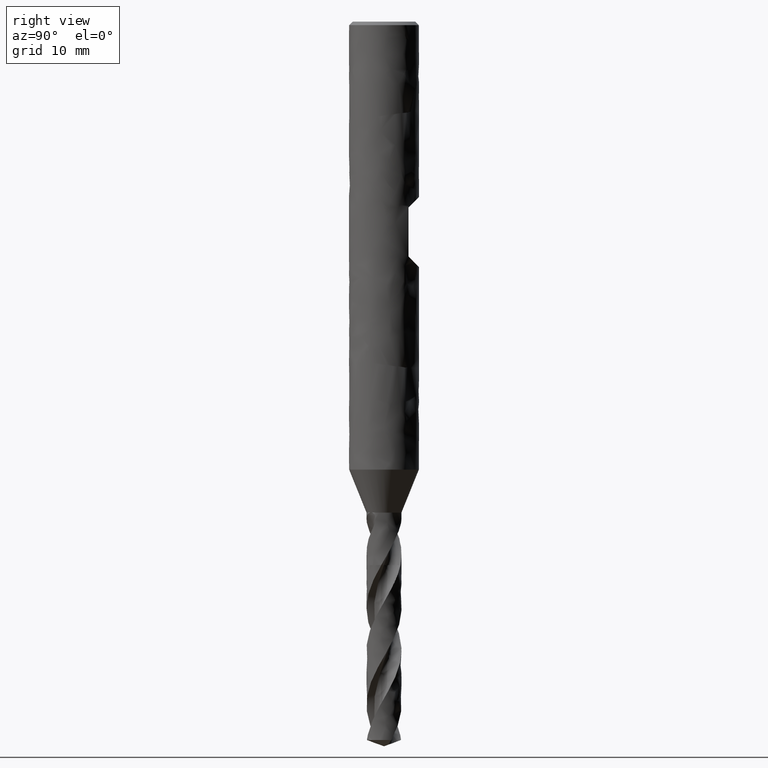
[diagram: clean part render]
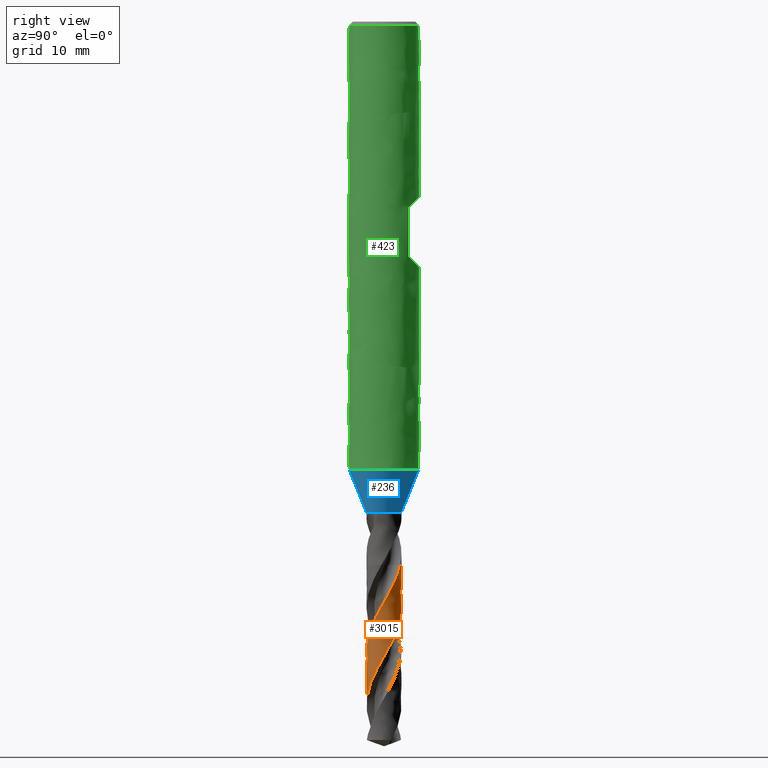
[diagram: same view with three faces highlighted in distinct colors, each labeled with its STEP entity id]
A machine part, right view with three faces highlighted in distinct colors.
Their STEP definitions:

[orange] entity #3015 — the highlighted face is a freeform B-spline surface patch.
#1657 = VERTEX_POINT('', #1658);
#1658 = CARTESIAN_POINT('', (0.52951462340686, 1.40342946513115, -46.5));
#1665 = EDGE_CURVE('', #1666, #1657, #1668, .T.);
#1666 = VERTEX_POINT('', #1667);
#1667 = CARTESIAN_POINT('', (-1.48073476619094, 0.239634204973892, -46.5));
#1668 = CIRCLE('', #1669, 1.5);
#1669 = AXIS2_PLACEMENT_3D('', #1670, #1671, #1672);
#1670 = CARTESIAN_POINT('', (1.74347074734441E-31, 2.8473038080176E-15, -46.5));
#1671 = DIRECTION('', (3.74939945665464E-33, 6.12323399573677E-17, -1.));
#1672 = DIRECTION('', (-1., 6.12323399573677E-17, 0.));
#2684 = EDGE_CURVE('', #2685, #1666, #2687, .T.);
#2685 = VERTEX_POINT('', #2686);
#2686 = CARTESIAN_POINT('', (-1.36402506337757, -0.624047775797498, -61.4540446486007));
#2687 = B_SPLINE_CURVE_WITH_KNOTS('', 3, (#2688, #2689, #2690, #2691, #2692, #2693, #2694, #2695, #2696, #2697, #2698, #2699, #2700, #2701, #2702, #2703, #2704, #2705, #2706, #2707, #2708, #2709, #2710, #2711, #2712, #2713, #2714, #2715, #2716, #2717, #2718, #2719, #2720, #2721, #2722, #2723, #2724, #2725, #2726, #2727, #2728, #2729, #2730, #2731, #2732, #2733, #2734, #2735, #2736, #2737, #2738, #2739, #2740, #2741, #2742, #2743, #2744, #2745, #2746, #2747, #2748, #2749, #2750, #2751, #2752, #2753, #2754, #2755, #2756, #2757, #2758, #2759, #2760, #2761, #2762, #2763, #2764, #2765, #2766, #2767, #2768, #2769, #2770, #2771, #2772, #2773, #2774, #2775, #2776, #2777, #2778, #2779, #2780, #2781, #2782, #2783, #2784, #2785, #2786, #2787, #2788, #2789, #2790, #2791, #2792, #2793, #2794, #2795, #2796, #2797, #2798, #2799, #2800, #2801, #2802, #2803, #2804, #2805, #2806, #2807, #2808, #2809, #2810, #2811, #2812, #2813, #2814, #2815, #2816, #2817, #2818, #2819, #2820, #2821, #2822, #2823, #2824, #2825, #2826, #2827, #2828, #2829, #2830, #2831, #2832, #2833, #2834, #2835, #2836, #2837, #2838, #2839, #2840, #2841, #2842, #2843, #2844, #2845, #2846, #2847, #2848, #2849, #2850, #2851, #2852, #2853, #2854, #2855, #2856, #2857, #2858, #2859, #2860, #2861, #2862, #2863, #2864, #2865, #2866, #2867, #2868, #2869, #2870, #2871), .UNSPECIFIED., .F., .U., (4, 3, 3, 3, 3, 3, 3, 3, 3, 3, 3, 3, 3, 3, 3, 3, 3, 3, 3, 3, 3, 3, 3, 3, 3, 3, 3, 3, 3, 3, 3, 3, 3, 3, 3, 3, 3, 3, 3, 3, 3, 3, 3, 3, 3, 3, 3, 3, 3, 3, 3, 3, 3, 3, 3, 3, 3, 3, 3, 3, 3, 4), (0., 0.443892613985307, 0.887488530879161, 1.33079520423712, 1.626246755949, 1.9216132941668, 2.21689440505491, 2.51208925631212, 2.80719658771954, 3.10221472204134, 3.39714151043321, 3.45549942805269, 3.48144835894085, 3.92628544991438, 4.22239166911708, 4.51840185150688, 4.81431895983343, 5.11014538677702, 5.40588300687055, 5.70153321658985, 5.99709698511399, 6.29257487289702, 6.58796702795867, 6.88327318896157, 7.17849268043908, 7.47362440001163, 7.76866679709688, 8.06361784225351, 8.19484767068423, 8.233761967263, 8.53002512912276, 8.82618560384423, 9.12224740254867, 9.41821385215034, 9.71408767257394, 10.0098710370353, 10.3055656183867, 10.6011726237265, 10.8966928188551, 11.1921265436694, 11.4874737192656, 11.7827338525189, 12.077906038762, 12.3729889351524, 12.6679807338229, 12.9628791255949, 13.0018113467133, 13.298071114809, 13.5942276383277, 13.8902849157661, 14.1862462593119, 14.4821143716737, 14.7778914065693, 15.073579013197, 15.3691783748985, 15.6646902215541, 15.9601148708176, 16.2554522023656, 16.5507016423787, 16.8458625741291, 17.14093206075, 17.2191628499047), .UNSPECIFIED.);
#2688 = CARTESIAN_POINT('', (-1.36402506337757, -0.624047775797498, -61.4540446486007));
#2689 = CARTESIAN_POINT('', (-1.33361656175587, -0.690513774011746, -61.3253939588564));
#2690 = CARTESIAN_POINT('', (-1.29831440715912, -0.754800844518805, -61.1966636268079));
#2691 = CARTESIAN_POINT('', (-1.25853747785153, -0.816139336659571, -61.0680215219669));
#2692 = CARTESIAN_POINT('', (-1.21878713537791, -0.877436830253303, -60.9394654012966));
#2693 = CARTESIAN_POINT('', (-1.17451709888051, -0.935868176912453, -60.8108296889209));
#2694 = CARTESIAN_POINT('', (-1.12625317830449, -0.990733959425555, -60.6822820771606));
#2695 = CARTESIAN_POINT('', (-1.07802072787169, -1.0455639670987, -60.5538182839485));
#2696 = CARTESIAN_POINT('', (-1.0257378630701, -1.0969032243196, -60.425274976682));
#2697 = CARTESIAN_POINT('', (-0.970025986863268, -1.14413704808905, -60.2968195450169));
#2698 = CARTESIAN_POINT('', (-0.932895572945951, -1.17561707617043, -60.2112075772931));
#2699 = CARTESIAN_POINT('', (-0.894217485994379, -1.20529888006559, -60.1255728673317));
#2700 = CARTESIAN_POINT('', (-0.854197027885905, -1.23302369707596, -60.0399646534866));
#2701 = CARTESIAN_POINT('', (-0.814188085299886, -1.26074053652267, -59.9543810726257));
#2702 = CARTESIAN_POINT('', (-0.772814012301867, -1.28651781376226, -59.8687747770296));
#2703 = CARTESIAN_POINT('', (-0.730294519269982, -1.31021750679962, -59.7831949590174));
#2704 = CARTESIAN_POINT('', (-0.687787323930217, -1.33391034529786, -59.6976398928115));
#2705 = CARTESIAN_POINT('', (-0.644110398519459, -1.35554072347134, -59.6120620952617));
#2706 = CARTESIAN_POINT('', (-0.599495624388476, -1.37499272592224, -59.5265108057615));
#2707 = CARTESIAN_POINT('', (-0.554893883444541, -1.394439045915, -59.4409845081161));
#2708 = CARTESIAN_POINT('', (-0.509328840051515, -1.41171960958913, -59.355435404912));
#2709 = CARTESIAN_POINT('', (-0.463042134407962, -1.42674173618176, -59.2699129000451));
#2710 = CARTESIAN_POINT('', (-0.416769151922206, -1.44175940898985, -59.1844157510295));
#2711 = CARTESIAN_POINT('', (-0.369748320757877, -1.45452863343372, -59.0988956897154));
#2712 = CARTESIAN_POINT('', (-0.32222865377351, -1.46498078304372, -59.0134023232317));
#2713 = CARTESIAN_POINT('', (-0.274723349752558, -1.4754297734598, -58.9279347973773));
#2714 = CARTESIAN_POINT('', (-0.226692513376663, -1.48356903554981, -58.842444285489));
#2715 = CARTESIAN_POINT('', (-0.178390267763973, -1.48935452876986, -58.7569805246105));
#2716 = CARTESIAN_POINT('', (-0.130102977887999, -1.49513823063814, -58.6715432257213));
#2717 = CARTESIAN_POINT('', (-0.0815171878159708, -1.49857288856306, -58.5860829127309));
#2718 = CARTESIAN_POINT('', (-0.0328898616455656, -1.49963937565049, -58.500649363307));
#2719 = CARTESIAN_POINT('', (-0.023267848297163, -1.49985040417703, -58.4837444084659));
#2720 = CARTESIAN_POINT('', (-0.0136435651749079, -1.49996882820286, -58.4668393357587));
#2721 = CARTESIAN_POINT('', (-0.0040190243563935, -1.49999461580474, -58.4499345222096));
#2722 = CARTESIAN_POINT('', (0.000260541377229877, -1.50000608229851, -58.4424177728745));
#2723 = CARTESIAN_POINT('', (0.00454018917414083, -1.49999923396252, -58.4349010200096));
#2724 = CARTESIAN_POINT('', (0.00881974195133834, -1.49997407049343, -58.4273842966714));
#2725 = CARTESIAN_POINT('', (0.0821832194788288, -1.49954269840962, -58.2985266817735));
#2726 = CARTESIAN_POINT('', (0.155570168872702, -1.49371433056337, -58.1695884104485));
#2727 = CARTESIAN_POINT('', (0.228096496080481, -1.48255589725214, -58.0407393046628));
#2728 = CARTESIAN_POINT('', (0.276373712566979, -1.47512827584408, -57.9549707787552));
#2729 = CARTESIAN_POINT('', (0.324305141501103, -1.46533705297267, -57.8691791585662));
#2730 = CARTESIAN_POINT('', (0.371633915506573, -1.45323371583695, -57.7834143895223));
#2731 = CARTESIAN_POINT('', (0.418947339261628, -1.44113430420446, -57.6976774367637));
#2732 = CARTESIAN_POINT('', (0.46568635321182, -1.42671714819544, -57.6119174502956));
#2733 = CARTESIAN_POINT('', (0.511600312885777, -1.41005855192441, -57.5261842573367));
#2734 = CARTESIAN_POINT('', (0.557499835898291, -1.39340519359226, -57.4404780213444));
#2735 = CARTESIAN_POINT('', (0.602601960556044, -1.37450195462753, -57.3547487882909));
#2736 = CARTESIAN_POINT('', (0.646664728676761, -1.35344919693552, -57.269046318644));
#2737 = CARTESIAN_POINT('', (0.690713994121771, -1.3324028906893, -57.1833701118195));
#2738 = CARTESIAN_POINT('', (0.733750597959465, -1.30919593336017, -57.0976709091718));
#2739 = CARTESIAN_POINT('', (0.775543676028076, -1.28395171504728, -57.0119984790907));
#2740 = CARTESIAN_POINT('', (0.817324207849024, -1.25871507502797, -56.9263517678025));
#2741 = CARTESIAN_POINT('', (0.857886563468375, -1.23142754332112, -56.840682014234));
#2742 = CARTESIAN_POINT('', (0.89701329239974, -1.20223423394036, -56.7550390941314));
#2743 = CARTESIAN_POINT('', (0.936128456748902, -1.17304955314767, -56.6694214872767));
#2744 = CARTESIAN_POINT('', (0.973831644617172, -1.14194322039065, -56.5837807525925));
#2745 = CARTESIAN_POINT('', (1.00992093359082, -1.10908056871222, -56.4981669358069));
#2746 = CARTESIAN_POINT('', (1.04599967090184, -1.07622752530328, -56.4125781504956));
#2747 = CARTESIAN_POINT('', (1.08048625275596, -1.04160025998079, -56.3269661629424));
#2748 = CARTESIAN_POINT('', (1.11319610502741, -1.00538272899021, -56.2413811529724));
#2749 = CARTESIAN_POINT('', (1.14589645293245, -0.969175721577726, -56.1558210110845));
#2750 = CARTESIAN_POINT('', (1.17683981791799, -0.931358656404265, -56.0702376305212));
#2751 = CARTESIAN_POINT('', (1.20586059182673, -0.892132407818076, -55.9846812507337));
#2752 = CARTESIAN_POINT('', (1.23487294537637, -0.852917540702987, -55.8991496950755));
#2753 = CARTESIAN_POINT('', (1.26198037684883, -0.812271932593015, -55.8135948974369));
#2754 = CARTESIAN_POINT('', (1.28703771624543, -0.770411524421682, -55.7280670923397));
#2755 = CARTESIAN_POINT('', (1.31208776099226, -0.728563302580752, -55.6425641859507));
#2756 = CARTESIAN_POINT('', (1.3351032089587, -0.685477089005083, -55.5570380618177));
#2757 = CARTESIAN_POINT('', (1.35596064033694, -0.641381900163269, -55.4715388963754));
#2758 = CARTESIAN_POINT('', (1.37681195025915, -0.597299652836377, -55.3860648241179));
#2759 = CARTESIAN_POINT('', (1.39551845664923, -0.55218375295335, -55.3005675795395));
#2760 = CARTESIAN_POINT('', (1.41197962607251, -0.506274170342656, -55.215097240773));
#2761 = CARTESIAN_POINT('', (1.42843590141448, -0.46037823714075, -55.1296523132501));
#2762 = CARTESIAN_POINT('', (1.44265765490148, -0.413662632558479, -55.0441842728621));
#2763 = CARTESIAN_POINT('', (1.45456818322172, -0.366376036824365, -54.9587430737776));
#2764 = CARTESIAN_POINT('', (1.46647510678536, -0.319103752518224, -54.8733277337246));
#2765 = CARTESIAN_POINT('', (1.47607910739007, -0.271233384611762, -54.7878893463039));
#2766 = CARTESIAN_POINT('', (1.48332804591319, -0.223019972665015, -54.7024777322963));
#2767 = CARTESIAN_POINT('', (1.49057473999782, -0.174821488702212, -54.6170925636936));
#2768 = CARTESIAN_POINT('', (1.4954720574103, -0.126252011123228, -54.5316844103939));
#2769 = CARTESIAN_POINT('', (1.49799292999016, -0.0775704950343171, -54.4463029683734));
#2770 = CARTESIAN_POINT('', (1.49911451840825, -0.0559110803314376, -54.4083149965675));
#2771 = CARTESIAN_POINT('', (1.49976633810661, -0.0342253987331024, -54.3703252192899));
#2772 = CARTESIAN_POINT('', (1.49994761222921, -0.0125363698049567, -54.3323380191875));
#2773 = CARTESIAN_POINT('', (1.50000136643322, -0.00610480379356891, -54.3210734676091));
#2774 = CARTESIAN_POINT('', (1.50001375404687, 0.000327198421333489, -54.3098088917201));
#2775 = CARTESIAN_POINT('', (1.49998477172859, 0.00675903708676955, -54.2985444048458));
#2776 = CARTESIAN_POINT('', (1.49976412291805, 0.0557260499103736, -54.212785370467));
#2777 = CARTESIAN_POINT('', (1.49714275760502, 0.104699705363857, -54.1270028213448));
#2778 = CARTESIAN_POINT('', (1.49213378190737, 0.153417003265315, -54.0412475646197));
#2779 = CARTESIAN_POINT('', (1.48712654236002, 0.202117415368772, -53.9555220313399));
#2780 = CARTESIAN_POINT('', (1.47973045677299, 0.250589752174051, -53.8697729929037));
#2781 = CARTESIAN_POINT('', (1.46998426484277, 0.298573711359035, -53.7840512275998));
#2782 = CARTESIAN_POINT('', (1.46024132019057, 0.346541683042721, -53.6983580234412));
#2783 = CARTESIAN_POINT('', (1.44814420202798, 0.394049318992786, -53.6126413440734));
#2784 = CARTESIAN_POINT('', (1.43375689665526, 0.440841424203184, -53.5269518998519));
#2785 = CARTESIAN_POINT('', (1.41937422483089, 0.487618459636707, -53.4412900526107));
#2786 = CARTESIAN_POINT('', (1.4026944959351, 0.533707547686657, -53.3556047755028));
#2787 = CARTESIAN_POINT('', (1.38380633163535, 0.578860982037931, -53.2699466820078));
#2788 = CARTESIAN_POINT('', (1.36492407880001, 0.624000284633675, -53.1843153970878));
#2789 = CARTESIAN_POINT('', (1.34382376269412, 0.668230823208437, -53.0986607373125));
#2790 = CARTESIAN_POINT('', (1.32061780156778, 0.711314713880064, -53.0130332020168));
#2791 = CARTESIAN_POINT('', (1.29741893507909, 0.75438543273817, -52.9274318451816));
#2792 = CARTESIAN_POINT('', (1.27210210714772, 0.796335447434044, -52.8418071716517));
#2793 = CARTESIAN_POINT('', (1.24480246421371, 0.83693896138696, -52.7562095626214));
#2794 = CARTESIAN_POINT('', (1.21751101561207, 0.877530287682705, -52.6706376467939));
#2795 = CARTESIAN_POINT('', (1.18822185070379, 0.916799844007329, -52.5850424682363));
#2796 = CARTESIAN_POINT('', (1.15709154567483, 0.954536094093802, -52.4994743009436));
#2797 = CARTESIAN_POINT('', (1.12597046052383, 0.992261167816265, -52.4139314764177));
#2798 = CARTESIAN_POINT('', (1.09299089650214, 1.02847617629373, -52.328365430721));
#2799 = CARTESIAN_POINT('', (1.05832933265276, 1.06298590002256, -52.2428263582693));
#2800 = CARTESIAN_POINT('', (1.02367794778297, 1.09748548936232, -52.157312405875));
#2801 = CARTESIAN_POINT('', (0.987324987149553, 1.13030126635173, -52.0717752523483));
#2802 = CARTESIAN_POINT('', (0.94946508143479, 1.16125624180714, -51.9862650586523));
#2803 = CARTESIAN_POINT('', (0.911616253670034, 1.19220215972096, -51.9007798855589));
#2804 = CARTESIAN_POINT('', (0.872238928786811, 1.22130670964703, -51.8152714997826));
#2805 = CARTESIAN_POINT('', (0.831543920661432, 1.24841287561889, -51.7297900953867));
#2806 = CARTESIAN_POINT('', (0.790860834401551, 1.27551110066433, -51.6443337333204));
#2807 = CARTESIAN_POINT('', (0.748836854424493, 1.30062809369215, -51.5588541112237));
#2808 = CARTESIAN_POINT('', (0.70569683380017, 1.32362833860734, -51.4734015250708));
#2809 = CARTESIAN_POINT('', (0.662569527055588, 1.34662180507543, -51.3879741228164));
#2810 = CARTESIAN_POINT('', (0.618301618844708, 1.36751322328361, -51.3025234022232));
#2811 = CARTESIAN_POINT('', (0.573129809141229, 1.38618982173213, -51.2170997671934));
#2812 = CARTESIAN_POINT('', (0.527971454439487, 1.40486085711674, -51.1317015766868));
#2813 = CARTESIAN_POINT('', (0.481883498421486, 1.42132924417571, -51.0462800330459));
#2814 = CARTESIAN_POINT('', (0.435112271945363, 1.43550594244768, -50.9608856005369));
#2815 = CARTESIAN_POINT('', (0.388355193807455, 1.44967835225562, -50.8755169999209));
#2816 = CARTESIAN_POINT('', (0.340888187186668, 1.46156866604139, -50.7901250352325));
#2817 = CARTESIAN_POINT('', (0.29296491783779, 1.47111235360064, -50.7047601840957));
#2818 = CARTESIAN_POINT('', (0.245056443316467, 1.48065309484146, -50.6194216867172));
#2819 = CARTESIAN_POINT('', (0.196664274114661, 1.48785417618995, -50.5340598356879));
#2820 = CARTESIAN_POINT('', (0.148047045273682, 1.49267614450892, -50.4487250802212));
#2821 = CARTESIAN_POINT('', (0.0994452107066592, 1.49749658598847, -50.3634173453527));
#2822 = CARTESIAN_POINT('', (0.0505903050672359, 1.49994221000082, -50.27808628529));
#2823 = CARTESIAN_POINT('', (0.00174351310744415, 1.49999898672053, -50.1927822859735));
#2824 = CARTESIAN_POINT('', (-0.00470519654497468, 1.50000648233214, -50.1815205285129));
#2825 = CARTESIAN_POINT('', (-0.0111540463850753, 1.49997239129975, -50.1702587468623));
#2826 = CARTESIAN_POINT('', (-0.0176024326375574, 1.49989671456579, -50.1589970559928));
#2827 = CARTESIAN_POINT('', (-0.0666722611978898, 1.49932084267849, -50.0732997638913));
#2828 = CARTESIAN_POINT('', (-0.115731464396015, 1.49633387137505, -49.9875787915809));
#2829 = CARTESIAN_POINT('', (-0.16451517795269, 1.49095095701478, -49.9018852731474));
#2830 = CARTESIAN_POINT('', (-0.213281890706621, 1.4855699185647, -49.8162216183404));
#2831 = CARTESIAN_POINT('', (-0.261801873399897, 1.47779145095672, -49.7305343186981));
#2832 = CARTESIAN_POINT('', (-0.309813099906683, 1.46765658214933, -49.6448744321346));
#2833 = CARTESIAN_POINT('', (-0.35780823719829, 1.45752510967436, -49.5592432513643));
#2834 = CARTESIAN_POINT('', (-0.405323168844604, 1.44503285547672, -49.4735884698273));
#2835 = CARTESIAN_POINT('', (-0.452101185030932, 1.43024631392416, -49.3879610533718));
#2836 = CARTESIAN_POINT('', (-0.498864043349082, 1.41546456377718, -49.3023613834776));
#2837 = CARTESIAN_POINT('', (-0.544918063252183, 1.39838128329175, -49.216738161077));
#2838 = CARTESIAN_POINT('', (-0.59001429599614, 1.37908778927238, -49.1311422533342));
#2839 = CARTESIAN_POINT('', (-0.63509632291469, 1.35980037292272, -49.0455733092743));
#2840 = CARTESIAN_POINT('', (-0.679247888527507, 1.33829269717046, -48.9599808596672));
#2841 = CARTESIAN_POINT('', (-0.722230195038787, 1.31468001634399, -48.8744156775005));
#2842 = CARTESIAN_POINT('', (-0.765199270250701, 1.29107460423981, -48.7888768349753));
#2843 = CARTESIAN_POINT('', (-0.807025372173763, 1.26535143321787, -48.7033145264177));
#2844 = CARTESIAN_POINT('', (-0.847482165836622, 1.23764856828943, -48.6177794481924));
#2845 = CARTESIAN_POINT('', (-0.887926727376788, 1.20995407932982, -48.5322702315215));
#2846 = CARTESIAN_POINT('', (-0.927026928973609, 1.18026457398305, -48.4467375732532));
#2847 = CARTESIAN_POINT('', (-0.964571106289377, 1.14873956182927, -48.3612321244738));
#2848 = CARTESIAN_POINT('', (-1.00210407893142, 1.11722395799125, -48.2757521939165));
#2849 = CARTESIAN_POINT('', (-1.03810434173282, 1.08385514670195, -48.1902488227846));
#2850 = CARTESIAN_POINT('', (-1.07237698678844, 1.04881247046674, -48.1047726711873));
#2851 = CARTESIAN_POINT('', (-1.10663948509647, 1.01378016895429, -48.0193218256304));
#2852 = CARTESIAN_POINT('', (-1.13919575716943, 0.977054170990316, -47.9338475148789));
#2853 = CARTESIAN_POINT('', (-1.16986954071252, 0.938831858062504, -47.8484004450428));
#2854 = CARTESIAN_POINT('', (-1.20053427326845, 0.900620823484582, -47.7629785882793));
#2855 = CARTESIAN_POINT('', (-1.22933575697563, 0.860891778536438, -47.6775332120946));
#2856 = CARTESIAN_POINT('', (-1.25611811001071, 0.819858093637636, -47.592115152712));
#2857 = CARTESIAN_POINT('', (-1.28289254707164, 0.7788365369334, -47.5067223400711));
#2858 = CARTESIAN_POINT('', (-1.30766480272109, 0.736486957919466, -47.4213060400276));
#2859 = CARTESIAN_POINT('', (-1.33030059621466, 0.693037029105181, -47.3359169565096));
#2860 = CARTESIAN_POINT('', (-1.3529296533616, 0.64960003086394, -47.2505532845357));
#2861 = CARTESIAN_POINT('', (-1.37343674689929, 0.605038020421444, -47.1651658910408));
#2862 = CARTESIAN_POINT('', (-1.39171097857528, 0.559589628310824, -47.0798060664882));
#2863 = CARTESIAN_POINT('', (-1.40997973210203, 0.514154860470659, -46.994471830637));
#2864 = CARTESIAN_POINT('', (-1.42602777862747, 0.46780708507091, -46.9091146334173));
#2865 = CARTESIAN_POINT('', (-1.43976722111521, 0.420797277798038, -46.8237840818387));
#2866 = CARTESIAN_POINT('', (-1.45350240692476, 0.373802034843998, -46.7384799669002));
#2867 = CARTESIAN_POINT('', (-1.46493815591419, 0.326119610369959, -46.6531505432807));
#2868 = CARTESIAN_POINT('', (-1.47401345662864, 0.278000592945045, -46.5678499026385));
#2869 = CARTESIAN_POINT('', (-1.47641956084782, 0.265242958295637, -46.545234428198));
#2870 = CARTESIAN_POINT('', (-1.47866054644234, 0.252451111870794, -46.5226148352539));
#2871 = CARTESIAN_POINT('', (-1.48073476619094, 0.239634204973892, -46.5));
#3015 = ADVANCED_FACE('', (#3016), #3194, .T.);
#3016 = FACE_OUTER_BOUND('', #3017, .T.);
#3017 = EDGE_LOOP('', (#3018, #3019, #3037, #3178, #3186, #3193));
#3018 = ORIENTED_EDGE('', *, *, #1665, .T.);
#3019 = ORIENTED_EDGE('', *, *, #3020, .T.);
#3020 = EDGE_CURVE('', #1657, #3021, #3023, .T.);
#3021 = VERTEX_POINT('', #3022);
#3022 = CARTESIAN_POINT('', (0.884643870118815, 1.21136502469785, -47.2029310706701));
#3023 = B_SPLINE_CURVE_WITH_KNOTS('', 3, (#3024, #3025, #3026, #3027, #3028, #3029, #3030, #3031, #3032, #3033, #3034, #3035, #3036), .UNSPECIFIED., .F., .U., (4, 3, 3, 3, 4), (1.79825494503924, 1.96639827128209, 2.26225888320252, 2.55802629434119, 2.60941792356074), .UNSPECIFIED.);
#3024 = CARTESIAN_POINT('', (0.52951462340686, 1.40342946513115, -46.5));
#3025 = CARTESIAN_POINT('', (0.555698752443162, 1.39355018044291, -46.5485607274405));
#3026 = CARTESIAN_POINT('', (0.581611411553291, 1.3829356810196, -46.5971389757904));
#3027 = CARTESIAN_POINT('', (0.607197333737666, 1.37160905432331, -46.645702555174));
#3028 = CARTESIAN_POINT('', (0.652217655169184, 1.35167901737068, -46.731153762989));
#3029 = CARTESIAN_POINT('', (0.696267353597215, 1.32952450465069, -46.8166318398275));
#3030 = CARTESIAN_POINT('', (0.739106592550115, 1.30526680983196, -46.9020853855689));
#3031 = CARTESIAN_POINT('', (0.781932336463798, 1.28101675657155, -46.9875120120892));
#3032 = CARTESIAN_POINT('', (0.823572835239664, 1.25465098165086, -47.0729664885084));
#3033 = CARTESIAN_POINT('', (0.863801437461542, 1.22631442812982, -47.1583978483322));
#3034 = CARTESIAN_POINT('', (0.870791434775474, 1.22139075636251, -47.1732421367914));
#3035 = CARTESIAN_POINT('', (0.877739289894669, 1.21640734839591, -47.1880866356982));
#3036 = CARTESIAN_POINT('', (0.884643870118794, 1.21136502469786, -47.2029310706701));
#3037 = ORIENTED_EDGE('', *, *, #3038, .T.);
#3038 = EDGE_CURVE('', #3021, #3039, #3041, .T.);
#3039 = VERTEX_POINT('', #3040);
#3040 = CARTESIAN_POINT('', (-1.5, 3.63740906835212E-15, -57.9033981207419));
#3041 = B_SPLINE_CURVE_WITH_KNOTS('', 3, (#3042, #3043, #3044, #3045, #3046, #3047, #3048, #3049, #3050, #3051, #3052, #3053, #3054, #3055, #3056, #3057, #3058, #3059, #3060, #3061, #3062, #3063, #3064, #3065, #3066, #3067, #3068, #3069, #3070, #3071, #3072, #3073, #3074, #3075, #3076, #3077, #3078, #3079, #3080, #3081, #3082, #3083, #3084, #3085, #3086, #3087, #3088, #3089, #3090, #3091, #3092, #3093, #3094, #3095, #3096, #3097, #3098, #3099, #3100, #3101, #3102, #3103, #3104, #3105, #3106, #3107, #3108, #3109, #3110, #3111, #3112, #3113, #3114, #3115, #3116, #3117, #3118, #3119, #3120, #3121, #3122, #3123, #3124, #3125, #3126, #3127, #3128, #3129, #3130, #3131, #3132, #3133, #3134, #3135, #3136, #3137, #3138, #3139, #3140, #3141, #3142, #3143, #3144, #3145, #3146, #3147, #3148, #3149, #3150, #3151, #3152, #3153, #3154, #3155, #3156, #3157, #3158, #3159, #3160, #3161, #3162, #3163, #3164, #3165, #3166, #3167, #3168, #3169, #3170, #3171, #3172, #3173, #3174, #3175, #3176, #3177), .UNSPECIFIED., .F., .U., (4, 3, 3, 3, 3, 3, 3, 3, 3, 3, 3, 3, 3, 3, 3, 3, 3, 3, 3, 3, 3, 3, 3, 3, 3, 3, 3, 3, 3, 3, 3, 3, 3, 3, 3, 3, 3, 3, 3, 3, 3, 3, 3, 3, 3, 4), (0., 0.443484352225547, 0.73901077809149, 1.03444919640017, 1.32979974178876, 1.62506221423519, 1.92023596560287, 2.21531990663016, 2.51031247638377, 2.80521161130135, 2.84412697946357, 3.14039731181282, 3.43656269131452, 3.73262746545157, 4.02859526180696, 4.32446907175328, 4.62025131607364, 4.91594389580226, 5.21154823082281, 5.50706529607514, 5.80249566143072, 6.09783947950204, 6.3930964850118, 6.68826598867389, 6.98334686276999, 7.27833751783436, 7.47509329338262, 7.56260914766672, 7.60153869899914, 7.89779569774774, 8.19394955946536, 8.4900045004389, 8.78596403913799, 9.08183107665456, 9.37760796005354, 9.67329654179279, 9.9688982221207, 10.2644139643236, 10.5598443125945, 10.8551894016627, 11.1504489585193, 11.4456222963209, 11.7407083002345, 12.0357054046506, 12.2324645676267, 12.3269811186894), .UNSPECIFIED.);
#3042 = CARTESIAN_POINT('', (0.884643870118815, 1.21136502469785, -47.2029310706701));
#3043 = CARTESIAN_POINT('', (0.944226983839601, 1.16785226410049, -47.3310312054127));
#3044 = CARTESIAN_POINT('', (1.00062037828974, 1.11991006338568, -47.4592254548207));
#3045 = CARTESIAN_POINT('', (1.05313969356211, 1.0681277010938, -47.5873404842877));
#3046 = CARTESIAN_POINT('', (1.08813719787873, 1.03362128305623, -47.6727130043509));
#3047 = CARTESIAN_POINT('', (1.12144286227362, 0.997386717204399, -47.7581146640665));
#3048 = CARTESIAN_POINT('', (1.15287757004589, 0.959621440196645, -47.8434939846068));
#3049 = CARTESIAN_POINT('', (1.18430291658478, 0.921867409661247, -47.9288478792468));
#3050 = CARTESIAN_POINT('', (1.21387714113694, 0.882561074374992, -48.0142307109401));
#3051 = CARTESIAN_POINT('', (1.2414413262795, 0.841916524012569, -48.0995913738958));
#3052 = CARTESIAN_POINT('', (1.26899731294383, 0.801284062651117, -48.1849266478355));
#3053 = CARTESIAN_POINT('', (1.29456106319666, 0.759289688207618, -48.2702907192656));
#3054 = CARTESIAN_POINT('', (1.31799548889297, 0.716161916927859, -48.3556327448593));
#3055 = CARTESIAN_POINT('', (1.34142292649039, 0.673047006263273, -48.4409493216315));
#3056 = CARTESIAN_POINT('', (1.36273651871722, 0.628773229461537, -48.5262945991352));
#3057 = CARTESIAN_POINT('', (1.38182236267125, 0.583581149474214, -48.6116178966167));
#3058 = CARTESIAN_POINT('', (1.40090247167139, 0.538402648896608, -48.6969155559771));
#3059 = CARTESIAN_POINT('', (1.41776774191012, 0.492279020921249, -48.782241877221));
#3060 = CARTESIAN_POINT('', (1.43232854852098, 0.445460356363832, -48.867546236583));
#3061 = CARTESIAN_POINT('', (1.4468849248226, 0.398655936976187, -48.9528246410168));
#3062 = CARTESIAN_POINT('', (1.45914702388283, 0.351128700969948, -49.0381317042626));
#3063 = CARTESIAN_POINT('', (1.4690502858655, 0.303135708220793, -49.1234167913359));
#3064 = CARTESIAN_POINT('', (1.47895048135239, 0.255157576262979, -49.2086754703065));
#3065 = CARTESIAN_POINT('', (1.48649922822027, 0.206685321399166, -49.293962827296));
#3066 = CARTESIAN_POINT('', (1.49165753227057, 0.157980398849199, -49.3792281765029));
#3067 = CARTESIAN_POINT('', (1.49681420249905, 0.109290902913049, -49.4644665190841));
#3068 = CARTESIAN_POINT('', (1.49958500707052, 0.060340111610228, -49.5497335667638));
#3069 = CARTESIAN_POINT('', (1.49995674532783, 0.0113913188740265, -49.6349785713605));
#3070 = CARTESIAN_POINT('', (1.50000580051121, 0.00493195679092559, -49.6462276404322));
#3071 = CARTESIAN_POINT('', (1.50001312971788, -0.00152765040544709, -49.6574768280905));
#3072 = CARTESIAN_POINT('', (1.49997873634456, -0.00798689640446321, -49.6687260182005));
#3073 = CARTESIAN_POINT('', (1.49971689284611, -0.0571624033886551, -49.7543683094069));
#3074 = CARTESIAN_POINT('', (1.49703382587779, -0.106333777037444, -49.8400396253567));
#3075 = CARTESIAN_POINT('', (1.49194581516952, -0.155234289379535, -49.9256886366293));
#3076 = CARTESIAN_POINT('', (1.48685960687329, -0.204117478866599, -50.0113073070049));
#3077 = CARTESIAN_POINT('', (1.47936716132713, -0.252758952531729, -50.0969550223022));
#3078 = CARTESIAN_POINT('', (1.46951074702384, -0.300895603792907, -50.1825804060888));
#3079 = CARTESIAN_POINT('', (1.45965768087744, -0.349015903361117, -50.268176703515));
#3080 = CARTESIAN_POINT('', (1.44743648723881, -0.396659945948139, -50.3538020579203));
#3081 = CARTESIAN_POINT('', (1.43291486970226, -0.443570711596628, -50.4394050658493));
#3082 = CARTESIAN_POINT('', (1.41839800880811, -0.490466111344186, -50.5249800340027));
#3083 = CARTESIAN_POINT('', (1.40157379598769, -0.536656001098834, -50.6105840522962));
#3084 = CARTESIAN_POINT('', (1.3825346014778, -0.581891807569661, -50.6961657315711));
#3085 = CARTESIAN_POINT('', (1.3635014529822, -0.627113249129631, -50.781720233853));
#3086 = CARTESIAN_POINT('', (1.34224371556335, -0.671407401283872, -50.8673037503685));
#3087 = CARTESIAN_POINT('', (1.31887746324506, -0.714536379020899, -50.9528649676991));
#3088 = CARTESIAN_POINT('', (1.29551844220392, -0.757652009406078, -51.0383997059491));
#3089 = CARTESIAN_POINT('', (1.27003869187796, -0.799628146449893, -51.1239633839007));
#3090 = CARTESIAN_POINT('', (1.24257685267292, -0.840239706989305, -51.2095048442171));
#3091 = CARTESIAN_POINT('', (1.21512333835771, -0.880838956380685, -51.295020373159));
#3092 = CARTESIAN_POINT('', (1.18567295824967, -0.920098081269475, -51.3805647197016));
#3093 = CARTESIAN_POINT('', (1.15438562591273, -0.957806779411203, -51.4660869806008));
#3094 = CARTESIAN_POINT('', (1.12310763077834, -0.995504223996746, -51.5515837187529));
#3095 = CARTESIAN_POINT('', (1.08997536648505, -1.03167434734166, -51.6371091058168));
#3096 = CARTESIAN_POINT('', (1.05516855386635, -1.06612350266355, -51.7226125796379));
#3097 = CARTESIAN_POINT('', (1.02037201708637, -1.10056248773607, -51.8080908107023));
#3098 = CARTESIAN_POINT('', (0.983881162432134, -1.13330205768654, -51.8935975252039));
#3099 = CARTESIAN_POINT('', (0.945893734023405, -1.16416710309785, -51.9790824648438));
#3100 = CARTESIAN_POINT('', (0.907917450507842, -1.19502309320725, -52.0645423245939));
#3101 = CARTESIAN_POINT('', (0.868422656373249, -1.22402419819969, -52.1500305698098));
#3102 = CARTESIAN_POINT('', (0.827623024185113, -1.25101563932618, -52.2354971128721));
#3103 = CARTESIAN_POINT('', (0.786835344381629, -1.27799917322239, -52.3209386182333));
#3104 = CARTESIAN_POINT('', (0.744719091842321, -1.30299043798747, -52.4064084691979));
#3105 = CARTESIAN_POINT('', (0.701501617676897, -1.32585650822277, -52.491856637829));
#3106 = CARTESIAN_POINT('', (0.658296846738719, -1.34871585726735, -52.577279690057));
#3107 = CARTESIAN_POINT('', (0.613965699389023, -1.36946492695967, -52.6627310900081));
#3108 = CARTESIAN_POINT('', (0.568746853516037, -1.38799388205266, -52.748160790485));
#3109 = CARTESIAN_POINT('', (0.523541408620808, -1.40651734593704, -52.833565173166));
#3110 = CARTESIAN_POINT('', (0.477422051351102, -1.42283298456462, -52.9189979321104));
#3111 = CARTESIAN_POINT('', (0.430636370655563, -1.43685500878433, -53.0044089528408));
#3112 = CARTESIAN_POINT('', (0.383864738140892, -1.45087282265741, -53.0897943274878));
#3113 = CARTESIAN_POINT('', (0.336399837124727, -1.46260661205266, -53.1752081183598));
#3114 = CARTESIAN_POINT('', (0.288495722215364, -1.47199531869617, -53.2606001254787));
#3115 = CARTESIAN_POINT('', (0.240606253673293, -1.48138115480453, -53.3459660245545));
#3116 = CARTESIAN_POINT('', (0.192250177633053, -1.48842877965192, -53.4313603767932));
#3117 = CARTESIAN_POINT('', (0.14368556943263, -1.49310229292466, -53.5167329071863));
#3118 = CARTESIAN_POINT('', (0.111293468236791, -1.49621947888539, -53.5736755192306));
#3119 = CARTESIAN_POINT('', (0.078798443680941, -1.4982821592487, -53.6306271425253));
#3120 = CARTESIAN_POINT('', (0.0462774377374131, -1.49928596296919, -53.687572754166));
#3121 = CARTESIAN_POINT('', (0.0318122785348671, -1.49973244917722, -53.71290183961));
#3122 = CARTESIAN_POINT('', (0.0173407505810859, -1.49996956970865, -53.7382318440581));
#3123 = CARTESIAN_POINT('', (0.00286971343114782, -1.49999725491243, -53.7635614920512));
#3124 = CARTESIAN_POINT('', (-0.00356741716844792, -1.50000957008172, -53.7748288428626));
#3125 = CARTESIAN_POINT('', (-0.0100045575413065, -1.49998044752595, -53.7860963095644));
#3126 = CARTESIAN_POINT('', (-0.0164411058355941, -1.49990989397327, -53.7973637788712));
#3127 = CARTESIAN_POINT('', (-0.0654237530714448, -1.49937297579535, -53.8831101213298));
#3128 = CARTESIAN_POINT('', (-0.114388235520027, -1.49643368426821, -53.9688852861847));
#3129 = CARTESIAN_POINT('', (-0.163071836702705, -1.49110951176476, -54.054638323562));
#3130 = CARTESIAN_POINT('', (-0.211738489485497, -1.48578719278492, -54.1403615074212));
#3131 = CARTESIAN_POINT('', (-0.26015228897822, -1.47807862034464, -54.2261135039666));
#3132 = CARTESIAN_POINT('', (-0.308054086928045, -1.46802679795954, -54.3118433881569));
#3133 = CARTESIAN_POINT('', (-0.355939884811324, -1.45797833306485, -54.3975446370159));
#3134 = CARTESIAN_POINT('', (-0.403341301491213, -1.44558246590395, -54.4832746534486));
#3135 = CARTESIAN_POINT('', (-0.450005077038429, -1.43090720546086, -54.568982611797));
#3136 = CARTESIAN_POINT('', (-0.496653815409412, -1.41623667404955, -54.65466295117));
#3137 = CARTESIAN_POINT('', (-0.542592002526359, -1.39927984910333, -54.7403719666488));
#3138 = CARTESIAN_POINT('', (-0.587574493389688, -1.38012905726889, -54.8260590282532));
#3139 = CARTESIAN_POINT('', (-0.632542925123124, -1.36098425095158, -54.9117193086477));
#3140 = CARTESIAN_POINT('', (-0.676582127187224, -1.33963582893318, -54.9974081168035));
#3141 = CARTESIAN_POINT('', (-0.719457194710583, -1.31619958402181, -55.0830751355918));
#3142 = CARTESIAN_POINT('', (-0.762319197703633, -1.29277048040606, -55.168716050646));
#3143 = CARTESIAN_POINT('', (-0.804042798625084, -1.26724113664342, -55.2543853018355));
#3144 = CARTESIAN_POINT('', (-0.844405452622421, -1.23974974554606, -55.3400329527429));
#3145 = CARTESIAN_POINT('', (-0.884756056694494, -1.21226656176847, -55.4256550342764));
#3146 = CARTESIAN_POINT('', (-0.923770428646958, -1.18280621535479, -55.5113052886493));
#3147 = CARTESIAN_POINT('', (-0.961240610162624, -1.15152789344166, -55.5969340779736));
#3148 = CARTESIAN_POINT('', (-0.998699779377315, -1.12025876407259, -55.6825377014203));
#3149 = CARTESIAN_POINT('', (-1.0346380059848, -1.08715408282681, -55.7681694108457));
#3150 = CARTESIAN_POINT('', (-1.06886406839363, -1.05239232384934, -55.8537797193473));
#3151 = CARTESIAN_POINT('', (-1.10308018050844, -1.01764067090505, -55.9393651389871));
#3152 = CARTESIAN_POINT('', (-1.13560550872556, -0.981212212980403, -56.0249786176075));
#3153 = CARTESIAN_POINT('', (-1.16626746695798, -0.943302812205824, -56.1105707049508));
#3154 = CARTESIAN_POINT('', (-1.19692056493423, -0.90540436595018, -56.1961380591113));
#3155 = CARTESIAN_POINT('', (-1.22572950616574, -0.86600343146519, -56.2817334885157));
#3156 = CARTESIAN_POINT('', (-1.25254197834418, -0.825311209475338, -56.3673074982813));
#3157 = CARTESIAN_POINT('', (-1.27934671262429, -0.784630730985846, -56.4528568119658));
#3158 = CARTESIAN_POINT('', (-1.3041718173167, -0.742635932615658, -56.5384342441717));
#3159 = CARTESIAN_POINT('', (-1.32688662981455, -0.699551192994047, -56.6239902064817));
#3160 = CARTESIAN_POINT('', (-1.34959486408164, -0.656478930752968, -56.7095213917056));
#3161 = CARTESIAN_POINT('', (-1.37020714507343, -0.612292516886839, -56.7950807498568));
#3162 = CARTESIAN_POINT('', (-1.3886155773089, -0.567227272312489, -56.8806185817091));
#3163 = CARTESIAN_POINT('', (-1.40701863407863, -0.522175187287803, -56.9661314355688));
#3164 = CARTESIAN_POINT('', (-1.42322961721004, -0.476219153630053, -57.0516725123681));
#3165 = CARTESIAN_POINT('', (-1.43716426603621, -0.429603156911844, -57.1371920157041));
#3166 = CARTESIAN_POINT('', (-1.45109479197286, -0.38300095261902, -57.2226862161086));
#3167 = CARTESIAN_POINT('', (-1.46275817612535, -0.335712979875763, -57.3082086699155));
#3168 = CARTESIAN_POINT('', (-1.47209442338842, -0.287989598125954, -57.3937095273501));
#3169 = CARTESIAN_POINT('', (-1.4814278579539, -0.24028059382746, -57.4791846262492));
#3170 = CARTESIAN_POINT('', (-1.48844077050117, -0.19210985051549, -57.5646879746723));
#3171 = CARTESIAN_POINT('', (-1.49309784118745, -0.143731821951282, -57.6501697427204));
#3172 = CARTESIAN_POINT('', (-1.49620404567704, -0.111464317408934, -57.7071849502566));
#3173 = CARTESIAN_POINT('', (-1.49826383856573, -0.0790946260499795, -57.7642090050065));
#3174 = CARTESIAN_POINT('', (-1.49927288919272, -0.0466990763475569, -57.8212272864821));
#3175 = CARTESIAN_POINT('', (-1.49975760351895, -0.0311373328366511, -57.8486169705561));
#3176 = CARTESIAN_POINT('', (-1.5, -0.0155681631116409, -57.8760077958061));
#3177 = CARTESIAN_POINT('', (-1.5, 2.88453907977819E-15, -57.9033981207419));
#3178 = ORIENTED_EDGE('', *, *, #3179, .T.);
#3179 = EDGE_CURVE('', #3039, #3180, #3182, .T.);
#3180 = VERTEX_POINT('', #3181);
#3181 = CARTESIAN_POINT('', (-1.5, 3.85482346361442E-15, -61.4540446486007));
#3182 = LINE('', #3183, #3184);
#3183 = CARTESIAN_POINT('', (-1.5, 3.63740906835212E-15, -57.9033981207419));
#3184 = VECTOR('', #3185, 3.55064652785885);
#3185 = DIRECTION('', (0., 2.174143952623E-16, -3.55064652785885));
#3186 = ORIENTED_EDGE('', *, *, #3187, .F.);
#3187 = EDGE_CURVE('', #2685, #3180, #3188, .T.);
#3188 = CIRCLE('', #3189, 1.5);
#3189 = AXIS2_PLACEMENT_3D('', #3190, #3191, #3192);
#3190 = CARTESIAN_POINT('', (2.30415761614694E-31, 3.76297495367837E-15, -61.4540446486007));
#3191 = DIRECTION('', (3.74939945665464E-33, 6.12323399573677E-17, -1.));
#3192 = DIRECTION('', (-1., 6.12323399573677E-17, 0.));
#3193 = ORIENTED_EDGE('', *, *, #2684, .T.);
#3194 = (
   BOUNDED_SURFACE ()
   B_SPLINE_SURFACE (2, 1, ((#3195, #3196), (#3197, #3198), (#3199, #3200), (#3201, #3202), (#3203, #3204), (#3205, #3206), (#3207, #3208), (#3209, #3210), (#3211, #3212)), .UNSPECIFIED., .F., .F., .U.)
   B_SPLINE_SURFACE_WITH_KNOTS ((3, 2, 2, 2, 3), (2, 2), (0.259253722530101, 2.35619449019235, 4.71238898038469, 7.06858347057704, 9.42477796076938), (0.231314365793011, 1.), .UNSPECIFIED.)
   GEOMETRIC_REPRESENTATION_ITEM ()
   RATIONAL_B_SPLINE_SURFACE (((0.942637482338774, 0.942637482338774), (0.739334026262149, 0.739334026262149), (1., 1.), (0.707106781186548, 0.707106781186548), (1., 1.), (0.707106781186548, 0.707106781186548), (1., 1.), (0.707106781186548, 0.707106781186548), (1., 1.)))
   REPRESENTATION_ITEM ('')
   SURFACE ()
);
#3195 = CARTESIAN_POINT('', (-1.48073476619094, 0.239634204973892, -46.5));
#3196 = CARTESIAN_POINT('', (-1.48073476619094, 0.239634204973893, -61.4540446486007));
#3197 = CARTESIAN_POINT('', (-1.27676389837353, 1.5, -46.5));
#3198 = CARTESIAN_POINT('', (-1.27676389837353, 1.5, -61.4540446486007));
#3199 = CARTESIAN_POINT('', (1.84889274661175E-31, 1.5, -46.5));
#3200 = CARTESIAN_POINT('', (2.34193081237488E-31, 1.5, -61.4540446486007));
#3201 = CARTESIAN_POINT('', (1.5, 1.5, -46.5));
#3202 = CARTESIAN_POINT('', (1.5, 1.5, -61.4540446486007));
#3203 = CARTESIAN_POINT('', (1.5, 2.93915231795365E-15, -46.5));
#3204 = CARTESIAN_POINT('', (1.5, 3.85482346361442E-15, -61.4540446486007));
#3205 = CARTESIAN_POINT('', (1.5, -1.5, -46.5));
#3206 = CARTESIAN_POINT('', (1.5, -1.5, -61.4540446486007));
#3207 = CARTESIAN_POINT('', (1.83697019872103E-16, -1.5, -46.5));
#3208 = CARTESIAN_POINT('', (1.83697019872103E-16, -1.5, -61.4540446486007));
#3209 = CARTESIAN_POINT('', (-1.5, -1.5, -46.5));
#3210 = CARTESIAN_POINT('', (-1.5, -1.5, -61.4540446486007));
#3211 = CARTESIAN_POINT('', (-1.5, 2.93915231795365E-15, -46.5));
#3212 = CARTESIAN_POINT('', (-1.5, 3.85482346361442E-15, -61.4540446486007));

[blue] entity #236 — the highlighted face is a freeform B-spline surface patch.
#75 = VERTEX_POINT('', #76);
#76 = CARTESIAN_POINT('', (0.922702667244723, -1.18263256671693, -42.));
#119 = EDGE_CURVE('', #75, #120, #122, .T.);
#120 = VERTEX_POINT('', #121);
#121 = CARTESIAN_POINT('', (-1.5, 2.66360678814549E-15, -42.));
#122 = CIRCLE('', #123, 1.5);
#123 = AXIS2_PLACEMENT_3D('', #124, #125, #126);
#124 = CARTESIAN_POINT('', (1.57474777179495E-31, 2.57175827820944E-15, -42.));
#125 = DIRECTION('', (3.74939945665464E-33, 6.12323399573677E-17, -1.));
#126 = DIRECTION('', (-1., 6.12323399573677E-17, 0.));
#236 = ADVANCED_FACE('', (#237), #348, .T.);
#237 = FACE_OUTER_BOUND('', #238, .T.);
#238 = EDGE_LOOP('', (#239, #256, #265, #280, #288, #303, #310, #318, #325, #326, #327, #342));
#239 = ORIENTED_EDGE('', *, *, #240, .T.);
#240 = EDGE_CURVE('', #241, #243, #245, .T.);
#241 = VERTEX_POINT('', #242);
#242 = CARTESIAN_POINT('', (1.0224165167091, -1.10871747876766, -41.98));
#243 = VERTEX_POINT('', #244);
#244 = CARTESIAN_POINT('', (1.08767677664472, -1.03293718567382, -42.));
#245 = B_SPLINE_CURVE_WITH_KNOTS('', 3, (#246, #247, #248, #249, #250, #251, #252, #253, #254, #255), .UNSPECIFIED., .F., .U., (4, 3, 3, 4), (0., 0.0587868186304592, 0.0977427722430551, 0.102770510642682), .UNSPECIFIED.);
#246 = CARTESIAN_POINT('', (1.02241651670888, -1.10871747876786, -41.98));
#247 = CARTESIAN_POINT('', (1.03681096392016, -1.09542138559137, -41.9800397299316));
#248 = CARTESIAN_POINT('', (1.05056244406651, -1.08114616373491, -41.9819423828308));
#249 = CARTESIAN_POINT('', (1.06281102370113, -1.06646425702421, -41.9862321025205));
#250 = CARTESIAN_POINT('', (1.07092772590041, -1.05673507469914, -41.9890747486295));
#251 = CARTESIAN_POINT('', (1.07846065843934, -1.04673754311732, -41.9929949014391));
#252 = CARTESIAN_POINT('', (1.08513400130735, -1.03678863374504, -41.9980053083563));
#253 = CARTESIAN_POINT('', (1.08599527716071, -1.03550460629746, -41.9986519621516));
#254 = CARTESIAN_POINT('', (1.08684303724668, -1.03422053139779, -41.9993169289336));
#255 = CARTESIAN_POINT('', (1.08767677664471, -1.03293718567383, -42.));
#256 = ORIENTED_EDGE('', *, *, #257, .F.);
#257 = EDGE_CURVE('', #258, #243, #260, .T.);
#258 = VERTEX_POINT('', #259);
#259 = CARTESIAN_POINT('', (-0.922702667244722, 1.18263256671693, -42.));
#260 = CIRCLE('', #261, 1.5);
#261 = AXIS2_PLACEMENT_3D('', #262, #263, #264);
#262 = CARTESIAN_POINT('', (1.57474777179495E-31, 2.57175827820944E-15, -42.));
#263 = DIRECTION('', (3.74939945665464E-33, 6.12323399573677E-17, -1.));
#264 = DIRECTION('', (-1., 6.12323399573677E-17, 0.));
#265 = ORIENTED_EDGE('', *, *, #266, .F.);
#266 = EDGE_CURVE('', #267, #258, #269, .T.);
#267 = VERTEX_POINT('', #268);
#268 = CARTESIAN_POINT('', (-1.02147658556031, 1.1095835103842, -41.98));
#269 = B_SPLINE_CURVE_WITH_KNOTS('', 3, (#270, #271, #272, #273, #274, #275, #276, #277, #278, #279), .UNSPECIFIED., .F., .U., (4, 3, 3, 4), (0., 0.0586684763369277, 0.117006147028182, 0.124959002958814), .UNSPECIFIED.);
#270 = CARTESIAN_POINT('', (-1.0214765855605, 1.10958351038403, -41.98));
#271 = CARTESIAN_POINT('', (-1.00707794907056, 1.12281684135555, -41.980039557774));
#272 = CARTESIAN_POINT('', (-0.99187548431285, 1.135260084783, -41.9818892925667));
#273 = CARTESIAN_POINT('', (-0.976380948810061, 1.14677546770415, -41.9850131798759));
#274 = CARTESIAN_POINT('', (-0.960973780154708, 1.15822592046315, -41.9881194529632));
#275 = CARTESIAN_POINT('', (-0.945164445077836, 1.16885038214623, -41.9925033269785));
#276 = CARTESIAN_POINT('', (-0.929229245668638, 1.17866285514528, -41.9977879689044));
#277 = CARTESIAN_POINT('', (-0.92705688699155, 1.18000053598101, -41.9985083952667));
#278 = CARTESIAN_POINT('', (-0.924881194194753, 1.18132373611657, -41.9992459912658));
#279 = CARTESIAN_POINT('', (-0.922702667244729, 1.18263256671693, -42.));
#280 = ORIENTED_EDGE('', *, *, #281, .F.);
#281 = EDGE_CURVE('', #282, #267, #284, .T.);
#282 = VERTEX_POINT('', #283);
#283 = CARTESIAN_POINT('', (-1.0224165167091, 1.10871747876766, -41.98));
#284 = LINE('', #285, #286);
#285 = CARTESIAN_POINT('', (-1.0224165167091, 1.10871747876766, -41.98));
#286 = VECTOR('', #287, 0.00127807719849531);
#287 = DIRECTION('', (0.00093993114878721, 0.000866031616543639, -7.105427357601E-15));
#288 = ORIENTED_EDGE('', *, *, #289, .T.);
#289 = EDGE_CURVE('', #282, #290, #292, .T.);
#290 = VERTEX_POINT('', #291);
#291 = CARTESIAN_POINT('', (-1.08767677664471, 1.03293718567383, -42.));
#292 = B_SPLINE_CURVE_WITH_KNOTS('', 3, (#293, #294, #295, #296, #297, #298, #299, #300, #301, #302), .UNSPECIFIED., .F., .U., (4, 3, 3, 4), (0., 0.0587868186304594, 0.0977427722430544, 0.102770510641878), .UNSPECIFIED.);
#293 = CARTESIAN_POINT('', (-1.02241651670947, 1.10871747876732, -41.98));
#294 = CARTESIAN_POINT('', (-1.03681096392073, 1.09542138559081, -41.9800397299316));
#295 = CARTESIAN_POINT('', (-1.05056244406705, 1.08114616373433, -41.9819423828309));
#296 = CARTESIAN_POINT('', (-1.06281102370163, 1.06646425702361, -41.9862321025207));
#297 = CARTESIAN_POINT('', (-1.07092772590088, 1.05673507469853, -41.9890747486297));
#298 = CARTESIAN_POINT('', (-1.07846065843979, 1.04673754311671, -41.9929949014394));
#299 = CARTESIAN_POINT('', (-1.08513400130776, 1.03678863374443, -41.9980053083566));
#300 = CARTESIAN_POINT('', (-1.08599527716098, 1.03550460629705, -41.9986519621519));
#301 = CARTESIAN_POINT('', (-1.08684303724682, 1.03422053139759, -41.9993169289337));
#302 = CARTESIAN_POINT('', (-1.08767677664471, 1.03293718567383, -42.));
#303 = ORIENTED_EDGE('', *, *, #304, .F.);
#304 = EDGE_CURVE('', #120, #290, #305, .T.);
#305 = CIRCLE('', #306, 1.5);
#306 = AXIS2_PLACEMENT_3D('', #307, #308, #309);
#307 = CARTESIAN_POINT('', (1.57474777179495E-31, 2.57175827820944E-15, -42.));
#308 = DIRECTION('', (3.74939945665464E-33, 6.12323399573677E-17, -1.));
#309 = DIRECTION('', (-1., 6.12323399573677E-17, 0.));
#310 = ORIENTED_EDGE('', *, *, #311, .F.);
#311 = EDGE_CURVE('', #312, #120, #314, .T.);
#312 = VERTEX_POINT('', #313);
#313 = CARTESIAN_POINT('', (-3., 2.53073261043801E-15, -38.33));
#314 = LINE('', #315, #316);
#315 = CARTESIAN_POINT('', (-3., 2.53073261043801E-15, -38.33));
#316 = VECTOR('', #317, 3.96470679874313);
#317 = DIRECTION('', (1.5, 1.32874177707488E-16, -3.67));
#318 = ORIENTED_EDGE('', *, *, #319, .T.);
#319 = EDGE_CURVE('', #312, #312, #320, .T.);
#320 = CIRCLE('', #321, 3.);
#321 = AXIS2_PLACEMENT_3D('', #322, #323, #324);
#322 = CARTESIAN_POINT('', (1.43714481173573E-31, 2.3470355905659E-15, -38.33));
#323 = DIRECTION('', (3.74939945665464E-33, 6.12323399573677E-17, -1.));
#324 = DIRECTION('', (-1., 6.12323399573677E-17, 0.));
#325 = ORIENTED_EDGE('', *, *, #311, .T.);
#326 = ORIENTED_EDGE('', *, *, #119, .F.);
#327 = ORIENTED_EDGE('', *, *, #328, .F.);
#328 = EDGE_CURVE('', #329, #75, #331, .T.);
#329 = VERTEX_POINT('', #330);
#330 = CARTESIAN_POINT('', (1.02147658556031, -1.1095835103842, -41.98));
#331 = B_SPLINE_CURVE_WITH_KNOTS('', 3, (#332, #333, #334, #335, #336, #337, #338, #339, #340, #341), .UNSPECIFIED., .F., .U., (4, 3, 3, 4), (0., 0.0586684763369301, 0.117006147028187, 0.124959002959187), .UNSPECIFIED.);
#332 = CARTESIAN_POINT('', (1.02147658556076, -1.10958351038379, -41.98));
#333 = CARTESIAN_POINT('', (1.00707794907083, -1.12281684135532, -41.980039557774));
#334 = CARTESIAN_POINT('', (0.991875484313125, -1.13526008478277, -41.9818892925666));
#335 = CARTESIAN_POINT('', (0.97638094881034, -1.14677546770394, -41.9850131798758));
#336 = CARTESIAN_POINT('', (0.960973780154991, -1.15822592046294, -41.9881194529631));
#337 = CARTESIAN_POINT('', (0.945164445078122, -1.16885038214604, -41.9925033269784));
#338 = CARTESIAN_POINT('', (0.929229245668925, -1.1786628551451, -41.9977879689043));
#339 = CARTESIAN_POINT('', (0.927056886991737, -1.18000053598089, -41.9985083952667));
#340 = CARTESIAN_POINT('', (0.92488119419484, -1.18132373611652, -41.9992459912657));
#341 = CARTESIAN_POINT('', (0.922702667244715, -1.18263256671694, -42.));
#342 = ORIENTED_EDGE('', *, *, #343, .F.);
#343 = EDGE_CURVE('', #241, #329, #344, .T.);
#344 = LINE('', #345, #346);
#345 = CARTESIAN_POINT('', (1.0224165167091, -1.10871747876766, -41.98));
#346 = VECTOR('', #347, 0.0012780771984947);
#347 = DIRECTION('', (-0.000939931148786988, -0.000866031616542973, 0.));
#348 = (
   BOUNDED_SURFACE ()
   B_SPLINE_SURFACE (2, 1, ((#349, #350), (#351, #352), (#353, #354), (#355, #356), (#357, #358), (#359, #360), (#361, #362), (#363, #364), (#365, #366)), .UNSPECIFIED., .T., .F., .U.)
   B_SPLINE_SURFACE_WITH_KNOTS ((3, 2, 2, 2, 3), (2, 2), (0., 0.25, 0.5, 0.75, 1.), (0., 1.), .UNSPECIFIED.)
   GEOMETRIC_REPRESENTATION_ITEM ()
   RATIONAL_B_SPLINE_SURFACE (((1., 1.), (0.707106781186548, 0.707106781186548), (1., 1.), (0.707106781186548, 0.707106781186548), (1., 1.), (0.707106781186548, 0.707106781186548), (1., 1.), (0.707106781186548, 0.707106781186548), (1., 1.)))
   REPRESENTATION_ITEM ('')
   SURFACE ()
);
#349 = CARTESIAN_POINT('', (-3., 2.53073261043801E-15, -38.33));
#350 = CARTESIAN_POINT('', (-1.5, 2.66360678814549E-15, -42.));
#351 = CARTESIAN_POINT('', (-3., 3., -38.33));
#352 = CARTESIAN_POINT('', (-1.5, 1.5, -42.));
#353 = CARTESIAN_POINT('', (1.23259516440783E-31, 3., -38.33));
#354 = CARTESIAN_POINT('', (1.60237371373018E-31, 1.5, -42.));
#355 = CARTESIAN_POINT('', (3., 3., -38.33));
#356 = CARTESIAN_POINT('', (1.5, 1.5, -42.));
#357 = CARTESIAN_POINT('', (3., 2.53073261043801E-15, -38.33));
#358 = CARTESIAN_POINT('', (1.5, 2.66360678814549E-15, -42.));
#359 = CARTESIAN_POINT('', (3., -3., -38.33));
#360 = CARTESIAN_POINT('', (1.5, -1.5, -42.));
#361 = CARTESIAN_POINT('', (3.67394039744206E-16, -3., -38.33));
#362 = CARTESIAN_POINT('', (1.83697019872103E-16, -1.5, -42.));
#363 = CARTESIAN_POINT('', (-3., -3., -38.33));
#364 = CARTESIAN_POINT('', (-1.5, -1.5, -42.));
#365 = CARTESIAN_POINT('', (-3., 2.53073261043801E-15, -38.33));
#366 = CARTESIAN_POINT('', (-1.5, 2.66360678814549E-15, -42.));

[green] entity #423 — the highlighted face is a freeform B-spline surface patch.
#312 = VERTEX_POINT('', #313);
#313 = CARTESIAN_POINT('', (-3., 2.53073261043801E-15, -38.33));
#319 = EDGE_CURVE('', #312, #312, #320, .T.);
#320 = CIRCLE('', #321, 3.);
#321 = AXIS2_PLACEMENT_3D('', #322, #323, #324);
#322 = CARTESIAN_POINT('', (1.43714481173573E-31, 2.3470355905659E-15, -38.33));
#323 = DIRECTION('', (3.74939945665464E-33, 6.12323399573677E-17, -1.));
#324 = DIRECTION('', (-1., 6.12323399573677E-17, 0.));
#372 = VERTEX_POINT('', #373);
#373 = CARTESIAN_POINT('', (-3., 2.02066721859313E-16, -0.299999999999997));
#389 = EDGE_CURVE('', #372, #372, #390, .T.);
#390 = CIRCLE('', #391, 3.);
#391 = AXIS2_PLACEMENT_3D('', #392, #393, #394);
#392 = CARTESIAN_POINT('', (1.12481983699637E-33, 1.836970198721E-17, -0.299999999999997));
#393 = DIRECTION('', (3.74939945665464E-33, 6.12323399573677E-17, -1.));
#394 = DIRECTION('', (-1., 6.12323399573677E-17, 0.));
#423 = ADVANCED_FACE('', (#424, #435), #606, .T.);
#424 = FACE_OUTER_BOUND('', #425, .T.);
#425 = EDGE_LOOP('', (#426, #432, #433, #434));
#426 = ORIENTED_EDGE('', *, *, #427, .T.);
#427 = EDGE_CURVE('', #312, #372, #428, .T.);
#428 = LINE('', #429, #430);
#429 = CARTESIAN_POINT('', (-3., 2.53073261043801E-15, -38.33));
#430 = VECTOR('', #431, 38.03);
#431 = DIRECTION('', (0., -2.32866588857869E-15, 38.03));
#432 = ORIENTED_EDGE('', *, *, #389, .T.);
#433 = ORIENTED_EDGE('', *, *, #427, .F.);
#434 = ORIENTED_EDGE('', *, *, #319, .F.);
#435 = FACE_BOUND('', #436, .T.);
#436 = EDGE_LOOP('', (#437, #447, #525, #533));
#437 = ORIENTED_EDGE('', *, *, #438, .F.);
#438 = EDGE_CURVE('', #439, #441, #443, .T.);
#439 = VERTEX_POINT('', #440);
#440 = CARTESIAN_POINT('', (2.14242852856286, 2.1, -15.9));
#441 = VERTEX_POINT('', #442);
#442 = CARTESIAN_POINT('', (2.14242852856286, 2.1, -20.1));
#443 = LINE('', #444, #445);
#444 = CARTESIAN_POINT('', (2.14242852856286, 2.1, -15.9));
#445 = VECTOR('', #446, 4.2);
#446 = DIRECTION('', (-4.44089209850063E-16, 4.44089209850063E-16, -4.2));
#447 = ORIENTED_EDGE('', *, *, #448, .F.);
#448 = EDGE_CURVE('', #449, #439, #451, .T.);
#449 = VERTEX_POINT('', #450);
#450 = CARTESIAN_POINT('', (-2.14242852856285, 2.1, -15.9));
#451 = B_SPLINE_CURVE_WITH_KNOTS('', 3, (#452, #453, #454, #455, #456, #457, #458, #459, #460, #461, #462, #463, #464, #465, #466, #467, #468, #469, #470, #471, #472, #473, #474, #475, #476, #477, #478, #479, #480, #481, #482, #483, #484, #485, #486, #487, #488, #489, #490, #491, #492, #493, #494, #495, #496, #497, #498, #499, #500, #501, #502, #503, #504, #505, #506, #507, #508, #509, #510, #511, #512, #513, #514, #515, #516, #517, #518, #519, #520, #521, #522, #523, #524), .UNSPECIFIED., .F., .U., (4, 3, 3, 3, 3, 3, 3, 3, 3, 3, 3, 3, 3, 3, 3, 3, 3, 3, 3, 3, 3, 3, 3, 3, 4), (0., 0.226532141220111, 0.522486989651018, 0.81871261700037, 1.01613164123478, 1.21365653787485, 1.41130126070877, 1.60907935009337, 1.80700249001341, 2.00507870652318, 2.20331049885993, 2.40169339368015, 2.59896230886553, 2.79623122405092, 2.99461411887114, 3.19284591120789, 3.39092212771765, 3.5888452676377, 3.7866233570223, 3.98426807985622, 4.18179297649629, 4.3792120007307, 4.67543762808005, 4.97139247651096, 5.19792461773105), .UNSPECIFIED.);
#452 = CARTESIAN_POINT('', (-2.14242852856285, 2.1, -15.9));
#453 = CARTESIAN_POINT('', (-2.09966946167759, 2.14362297369035, -15.8556089394693));
#454 = CARTESIAN_POINT('', (-2.05511554936735, 2.1864112283916, -15.8120672951529));
#455 = CARTESIAN_POINT('', (-2.00876778330359, 2.22819478339795, -15.7695480406737));
#456 = CARTESIAN_POINT('', (-1.94821634893922, 2.28278326528933, -15.71399839793));
#457 = CARTESIAN_POINT('', (-1.88451279376244, 2.33573606973675, -15.6601132326456));
#458 = CARTESIAN_POINT('', (-1.81770907332823, 2.38661553768948, -15.6083379099064));
#459 = CARTESIAN_POINT('', (-1.75084423195187, 2.43754155695696, -15.5565152162052));
#460 = CARTESIAN_POINT('', (-1.6807436866328, 2.48648668451198, -15.5067082925553));
#461 = CARTESIAN_POINT('', (-1.607549105666, 2.53294016369761, -15.4594368887067));
#462 = CARTESIAN_POINT('', (-1.5587687118729, 2.56389899941747, -15.4279329486004));
#463 = CARTESIAN_POINT('', (-1.5085561938224, 2.59378846644904, -15.3975172059771));
#464 = CARTESIAN_POINT('', (-1.45698599487321, 2.6224400490275, -15.3683611437249));
#465 = CARTESIAN_POINT('', (-1.40538813971894, 2.65110699695379, -15.3391894455811));
#466 = CARTESIAN_POINT('', (-1.3523713681821, 2.67856731294512, -15.311245625015));
#467 = CARTESIAN_POINT('', (-1.29804490816719, 2.7046403488045, -15.2847135109673));
#468 = CARTESIAN_POINT('', (-1.24368549163368, 2.73072920156951, -15.2581653015194));
#469 = CARTESIAN_POINT('', (-1.18794354651528, 2.75546251726231, -15.2329964966177));
#470 = CARTESIAN_POINT('', (-1.13097137564117, 2.77865142604833, -15.2093992916021));
#471 = CARTESIAN_POINT('', (-1.07396076113038, 2.80185598222798, -15.1857861636831));
#472 = CARTESIAN_POINT('', (-1.01563414958425, 2.82354738172838, -15.1637128351876));
#473 = CARTESIAN_POINT('', (-0.956194799697463, 2.84353503671602, -15.143373249704));
#474 = CARTESIAN_POINT('', (-0.896711856966013, 2.86353735065839, -15.1230187471597));
#475 = CARTESIAN_POINT('', (-0.836016614422416, 2.88186535336629, -15.1043680361057));
#476 = CARTESIAN_POINT('', (-0.774369168024384, 2.89833614192924, -15.087607239896));
#477 = CARTESIAN_POINT('', (-0.712674042608815, 2.91481966923585, -15.0708334806465));
#478 = CARTESIAN_POINT('', (-0.649913305064555, 2.92947198918526, -15.0559231715418));
#479 = CARTESIAN_POINT('', (-0.586405693294018, 2.94212990244693, -15.0430423854271));
#480 = CARTESIAN_POINT('', (-0.522848200475698, 2.95479775766609, -15.030151482303));
#481 = CARTESIAN_POINT('', (-0.458417641638551, 2.96549204170255, -15.0192688998049));
#482 = CARTESIAN_POINT('', (-0.393487032405306, 2.97408270821927, -15.010526974047));
#483 = CARTESIAN_POINT('', (-0.328506929716984, 2.98267992298454, -15.0017783847429));
#484 = CARTESIAN_POINT('', (-0.262890170542835, 2.98918754384691, -14.9951561816426));
#485 = CARTESIAN_POINT('', (-0.197052250671382, 2.99352140638837, -14.9907460110803));
#486 = CARTESIAN_POINT('', (-0.131584030526326, 2.99783093298788, -14.9863606049525));
#487 = CARTESIAN_POINT('', (-0.0657563050617914, 3., -14.9841533463251));
#488 = CARTESIAN_POINT('', (3.64456218873655E-15, 3., -14.9841533463251));
#489 = CARTESIAN_POINT('', (0.0657563050618009, 3., -14.9841533463251));
#490 = CARTESIAN_POINT('', (0.131584030526338, 2.99783093298788, -14.9863606049525));
#491 = CARTESIAN_POINT('', (0.197052250671397, 2.99352140638837, -14.9907460110803));
#492 = CARTESIAN_POINT('', (0.262890170542849, 2.98918754384691, -14.9951561816426));
#493 = CARTESIAN_POINT('', (0.328506929716997, 2.98267992298453, -15.0017783847429));
#494 = CARTESIAN_POINT('', (0.393487032405319, 2.97408270821927, -15.010526974047));
#495 = CARTESIAN_POINT('', (0.458417641638564, 2.96549204170255, -15.0192688998049));
#496 = CARTESIAN_POINT('', (0.522848200475711, 2.95479775766609, -15.030151482303));
#497 = CARTESIAN_POINT('', (0.586405693294031, 2.94212990244693, -15.0430423854271));
#498 = CARTESIAN_POINT('', (0.649913305064568, 2.92947198918526, -15.0559231715418));
#499 = CARTESIAN_POINT('', (0.712674042608827, 2.91481966923584, -15.0708334806465));
#500 = CARTESIAN_POINT('', (0.774369168024396, 2.89833614192924, -15.087607239896));
#501 = CARTESIAN_POINT('', (0.836016614422428, 2.88186535336629, -15.1043680361057));
#502 = CARTESIAN_POINT('', (0.896711856966027, 2.86353735065839, -15.1230187471597));
#503 = CARTESIAN_POINT('', (0.956194799697476, 2.84353503671602, -15.143373249704));
#504 = CARTESIAN_POINT('', (1.01563414958426, 2.82354738172838, -15.1637128351876));
#505 = CARTESIAN_POINT('', (1.07396076113039, 2.80185598222797, -15.1857861636831));
#506 = CARTESIAN_POINT('', (1.13097137564118, 2.77865142604832, -15.2093992916021));
#507 = CARTESIAN_POINT('', (1.1879435465153, 2.75546251726231, -15.2329964966177));
#508 = CARTESIAN_POINT('', (1.24368549163369, 2.7307292015695, -15.2581653015195));
#509 = CARTESIAN_POINT('', (1.2980449081672, 2.70464034880449, -15.2847135109673));
#510 = CARTESIAN_POINT('', (1.35237136818211, 2.67856731294511, -15.311245625015));
#511 = CARTESIAN_POINT('', (1.40538813971895, 2.65110699695378, -15.3391894455812));
#512 = CARTESIAN_POINT('', (1.45698599487322, 2.6224400490275, -15.3683611437249));
#513 = CARTESIAN_POINT('', (1.50855619382241, 2.59378846644903, -15.3975172059771));
#514 = CARTESIAN_POINT('', (1.55876871187291, 2.56389899941746, -15.4279329486004));
#515 = CARTESIAN_POINT('', (1.60754910566601, 2.53294016369761, -15.4594368887067));
#516 = CARTESIAN_POINT('', (1.68074368663281, 2.48648668451198, -15.5067082925553));
#517 = CARTESIAN_POINT('', (1.75084423195189, 2.43754155695695, -15.5565152162052));
#518 = CARTESIAN_POINT('', (1.81770907332824, 2.38661553768947, -15.6083379099064));
#519 = CARTESIAN_POINT('', (1.88451279376245, 2.33573606973674, -15.6601132326456));
#520 = CARTESIAN_POINT('', (1.94821634893922, 2.28278326528932, -15.71399839793));
#521 = CARTESIAN_POINT('', (2.0087677833036, 2.22819478339795, -15.7695480406738));
#522 = CARTESIAN_POINT('', (2.05511554936736, 2.1864112283916, -15.8120672951529));
#523 = CARTESIAN_POINT('', (2.09966946167759, 2.14362297369034, -15.8556089394693));
#524 = CARTESIAN_POINT('', (2.14242852856286, 2.1, -15.9));
#525 = ORIENTED_EDGE('', *, *, #526, .T.);
#526 = EDGE_CURVE('', #449, #527, #529, .T.);
#527 = VERTEX_POINT('', #528);
#528 = CARTESIAN_POINT('', (-2.14242852856285, 2.1, -20.1));
#529 = LINE('', #530, #531);
#530 = CARTESIAN_POINT('', (-2.14242852856285, 2.1, -15.9));
#531 = VECTOR('', #532, 4.2);
#532 = DIRECTION('', (0., 0., -4.2));
#533 = ORIENTED_EDGE('', *, *, #534, .T.);
#534 = EDGE_CURVE('', #527, #441, #535, .T.);
#535 = B_SPLINE_CURVE_WITH_KNOTS('', 3, (#536, #537, #538, #539, #540, #541, #542, #543, #544, #545, #546, #547, #548, #549, #550, #551, #552, #553, #554, #555, #556, #557, #558, #559, #560, #561, #562, #563, #564, #565, #566, #567, #568, #569, #570, #571, #572, #573, #574, #575, #576, #577, #578, #579, #580, #581, #582, #583, #584, #585, #586, #587, #588, #589, #590, #591, #592, #593, #594, #595, #596, #597, #598, #599, #600, #601, #602, #603, #604, #605), .UNSPECIFIED., .F., .U., (4, 3, 3, 3, 3, 3, 3, 3, 3, 3, 3, 3, 3, 3, 3, 3, 3, 3, 3, 3, 3, 3, 3, 4), (0., 0.295660747419769, 0.591176839852677, 0.886518626925894, 1.18164841836716, 1.47652016794506, 1.67307726230278, 1.86952243409268, 2.06584587187348, 2.26204020012183, 2.39294997035299, 2.59879551853109, 2.79606443371648, 2.9944473285367, 3.19267912087345, 3.39075533738321, 3.58867847730326, 3.78645656668786, 3.98410128952178, 4.18162618616184, 4.37904521039626, 4.67527083774561, 4.97122568617651, 5.19775782739662), .UNSPECIFIED.);
#536 = CARTESIAN_POINT('', (-2.14242852856285, 2.1, -20.1));
#537 = CARTESIAN_POINT('', (-2.08662109388193, 2.15693497150777, -20.157937447925));
#538 = CARTESIAN_POINT('', (-2.02774367313634, 2.21245994000831, -20.2144400663657));
#539 = CARTESIAN_POINT('', (-1.96580397010841, 2.26618947820047, -20.269115641651));
#540 = CARTESIAN_POINT('', (-1.90389457170158, 2.31989272867704, -20.3237644663626));
#541 = CARTESIAN_POINT('', (-1.8388216153995, 2.37189080900499, -20.3766780973248));
#542 = CARTESIAN_POINT('', (-1.77065397516674, 2.42173171516323, -20.4273965719039));
#543 = CARTESIAN_POINT('', (-1.70252654250763, 2.47154322347377, -20.4780851310158));
#544 = CARTESIAN_POINT('', (-1.63117078258686, 2.51929762113425, -20.5266803591222));
#545 = CARTESIAN_POINT('', (-1.55675381487313, 2.56447217958794, -20.572650323779));
#546 = CARTESIAN_POINT('', (-1.48239026348173, 2.60961431185107, -20.6185872913044));
#547 = CARTESIAN_POINT('', (-1.40478985624159, 2.6522855246488, -20.6620098329141));
#548 = CARTESIAN_POINT('', (-1.32426732289553, 2.69189822569709, -20.7023200103564));
#549 = CARTESIAN_POINT('', (-1.24381519309784, 2.73147629203384, -20.7425949432603));
#550 = CARTESIAN_POINT('', (-1.16021288035591, 2.76811040114363, -20.7798740835253));
#551 = CARTESIAN_POINT('', (-1.07398043712975, 2.80117225829876, -20.8135180737918));
#552 = CARTESIAN_POINT('', (-1.01649918128152, 2.82321079737816, -20.8359446540893));
#553 = CARTESIAN_POINT('', (-0.957748596561566, 2.84370285567261, -20.856797524107));
#554 = CARTESIAN_POINT('', (-0.897945836518627, 2.86246279882885, -20.8758877809545));
#555 = CARTESIAN_POINT('', (-0.838177129067322, 2.88121205979111, -20.8949671675225));
#556 = CARTESIAN_POINT('', (-0.777257254947385, 2.89826163823775, -20.9123169445968));
#557 = CARTESIAN_POINT('', (-0.715458762567486, 2.91343761887321, -20.9277601346871));
#558 = CARTESIAN_POINT('', (-0.653698565749472, 2.92860419519017, -20.9431937548733));
#559 = CARTESIAN_POINT('', (-0.590947680355499, 2.94192632660259, -20.9567504542887));
#560 = CARTESIAN_POINT('', (-0.527533495262698, 2.9532538684265, -20.9682774445929));
#561 = CARTESIAN_POINT('', (-0.464161013676518, 2.96457396084119, -20.9797968543232));
#562 = CARTESIAN_POINT('', (-0.40000137973657, 2.97392352783086, -20.989311042813));
#563 = CARTESIAN_POINT('', (-0.33542995576513, 2.98118881400953, -20.9967042517405));
#564 = CARTESIAN_POINT('', (-0.292344967778631, 2.9860365430586, -21.0016373366599));
#565 = CARTESIAN_POINT('', (-0.249027925527352, 2.98996321515988, -21.0056331472199));
#566 = CARTESIAN_POINT('', (-0.205599414331938, 2.99294652154468, -21.0086689818526));
#567 = CARTESIAN_POINT('', (-0.137311419648321, 2.99763754145158, -21.0134425983904));
#568 = CARTESIAN_POINT('', (-0.0686151827260371, 3., -21.0158466536749));
#569 = CARTESIAN_POINT('', (-3.23882056393942E-15, 3., -21.0158466536749));
#570 = CARTESIAN_POINT('', (0.0657563050617916, 3., -21.0158466536749));
#571 = CARTESIAN_POINT('', (0.131584030526326, 2.99783093298788, -21.0136393950475));
#572 = CARTESIAN_POINT('', (0.197052250671383, 2.99352140638837, -21.0092539889197));
#573 = CARTESIAN_POINT('', (0.262890170542835, 2.98918754384691, -21.0048438183574));
#574 = CARTESIAN_POINT('', (0.328506929716984, 2.98267992298454, -20.9982216152571));
#575 = CARTESIAN_POINT('', (0.393487032405305, 2.97408270821927, -20.989473025953));
#576 = CARTESIAN_POINT('', (0.458417641638551, 2.96549204170255, -20.9807311001951));
#577 = CARTESIAN_POINT('', (0.522848200475698, 2.95479775766609, -20.969848517697));
#578 = CARTESIAN_POINT('', (0.586405693294019, 2.94212990244693, -20.9569576145729));
#579 = CARTESIAN_POINT('', (0.649913305064555, 2.92947198918526, -20.9440768284582));
#580 = CARTESIAN_POINT('', (0.712674042608815, 2.91481966923585, -20.9291665193535));
#581 = CARTESIAN_POINT('', (0.774369168024384, 2.89833614192924, -20.912392760104));
#582 = CARTESIAN_POINT('', (0.836016614422415, 2.88186535336629, -20.8956319638943));
#583 = CARTESIAN_POINT('', (0.896711856966014, 2.86353735065839, -20.8769812528403));
#584 = CARTESIAN_POINT('', (0.956194799697463, 2.84353503671602, -20.856626750296));
#585 = CARTESIAN_POINT('', (1.01563414958425, 2.82354738172838, -20.8362871648124));
#586 = CARTESIAN_POINT('', (1.07396076113038, 2.80185598222798, -20.8142138363169));
#587 = CARTESIAN_POINT('', (1.13097137564117, 2.77865142604833, -20.7906007083979));
#588 = CARTESIAN_POINT('', (1.18794354651528, 2.75546251726231, -20.7670035033823));
#589 = CARTESIAN_POINT('', (1.24368549163368, 2.73072920156951, -20.7418346984805));
#590 = CARTESIAN_POINT('', (1.29804490816719, 2.7046403488045, -20.7152864890327));
#591 = CARTESIAN_POINT('', (1.3523713681821, 2.67856731294512, -20.688754374985));
#592 = CARTESIAN_POINT('', (1.40538813971894, 2.65110699695379, -20.6608105544189));
#593 = CARTESIAN_POINT('', (1.45698599487321, 2.6224400490275, -20.6316388562751));
#594 = CARTESIAN_POINT('', (1.5085561938224, 2.59378846644904, -20.6024827940229));
#595 = CARTESIAN_POINT('', (1.5587687118729, 2.56389899941747, -20.5720670513996));
#596 = CARTESIAN_POINT('', (1.607549105666, 2.53294016369761, -20.5405631112933));
#597 = CARTESIAN_POINT('', (1.6807436866328, 2.48648668451198, -20.4932917074447));
#598 = CARTESIAN_POINT('', (1.75084423195188, 2.43754155695696, -20.4434847837948));
#599 = CARTESIAN_POINT('', (1.81770907332823, 2.38661553768948, -20.3916620900936));
#600 = CARTESIAN_POINT('', (1.88451279376244, 2.33573606973675, -20.3398867673544));
#601 = CARTESIAN_POINT('', (1.94821634893922, 2.28278326528933, -20.28600160207));
#602 = CARTESIAN_POINT('', (2.00876778330359, 2.22819478339795, -20.2304519593263));
#603 = CARTESIAN_POINT('', (2.05511554936735, 2.1864112283916, -20.1879327048471));
#604 = CARTESIAN_POINT('', (2.09966946167759, 2.14362297369035, -20.1443910605307));
#605 = CARTESIAN_POINT('', (2.14242852856286, 2.1, -20.1));
#606 = (
   BOUNDED_SURFACE ()
   B_SPLINE_SURFACE (1, 2, ((#607, #608, #609, #610, #611, #612, #613, #614, #615), (#616, #617, #618, #619, #620, #621, #622, #623, #624)), .UNSPECIFIED., .F., .T., .U.)
   B_SPLINE_SURFACE_WITH_KNOTS ((2, 2), (3, 2, 2, 2, 3), (0., 1.), (0., 4.71238898038469, 9.42477796076938, 14.1371669411541, 18.8495559215388), .UNSPECIFIED.)
   GEOMETRIC_REPRESENTATION_ITEM ()
   RATIONAL_B_SPLINE_SURFACE (((1., 0.707106781186548, 1., 0.707106781186548, 1., 0.707106781186548, 1., 0.707106781186548, 1.), (1., 0.707106781186548, 1., 0.707106781186548, 1., 0.707106781186548, 1., 0.707106781186548, 1.)))
   REPRESENTATION_ITEM ('')
   SURFACE ()
);
#607 = CARTESIAN_POINT('', (-3., 2.53073261043801E-15, -38.33));
#608 = CARTESIAN_POINT('', (-3., 3., -38.33));
#609 = CARTESIAN_POINT('', (1.23259516440783E-31, 3., -38.33));
#610 = CARTESIAN_POINT('', (3., 3., -38.33));
#611 = CARTESIAN_POINT('', (3., 2.53073261043801E-15, -38.33));
#612 = CARTESIAN_POINT('', (3., -3., -38.33));
#613 = CARTESIAN_POINT('', (3.67394039744206E-16, -3., -38.33));
#614 = CARTESIAN_POINT('', (-3., -3., -38.33));
#615 = CARTESIAN_POINT('', (-3., 2.53073261043801E-15, -38.33));
#616 = CARTESIAN_POINT('', (-3., 2.02066721859313E-16, -0.299999999999997));
#617 = CARTESIAN_POINT('', (-3., 3., -0.299999999999997));
#618 = CARTESIAN_POINT('', (0., 3., -0.299999999999997));
#619 = CARTESIAN_POINT('', (3., 3., -0.299999999999997));
#620 = CARTESIAN_POINT('', (3., 2.02066721859313E-16, -0.299999999999997));
#621 = CARTESIAN_POINT('', (3., -3., -0.299999999999997));
#622 = CARTESIAN_POINT('', (3.67394039744206E-16, -3., -0.299999999999997));
#623 = CARTESIAN_POINT('', (-3., -3., -0.299999999999997));
#624 = CARTESIAN_POINT('', (-3., 2.02066721859313E-16, -0.299999999999997));